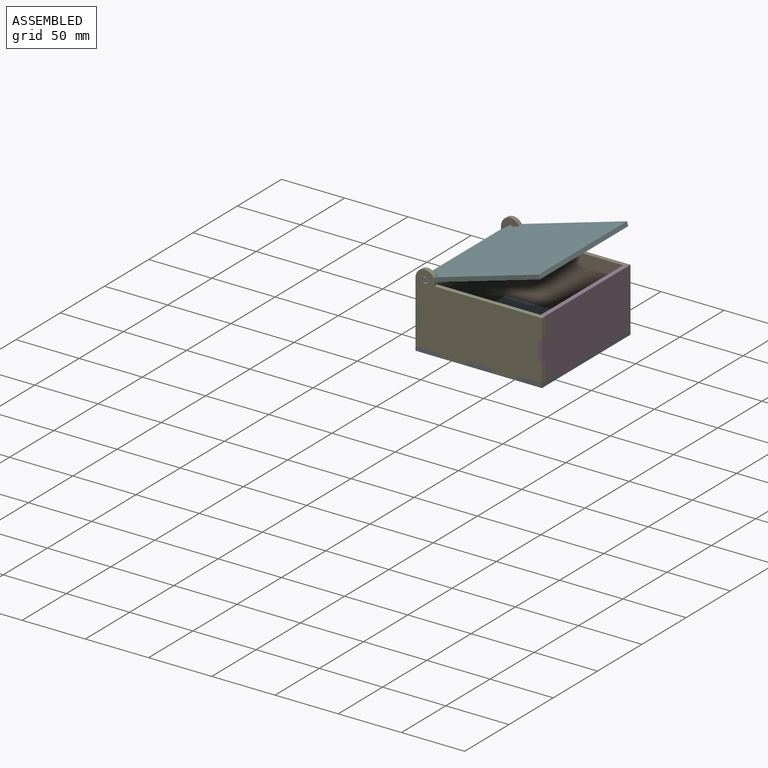
[diagram: assembled view]
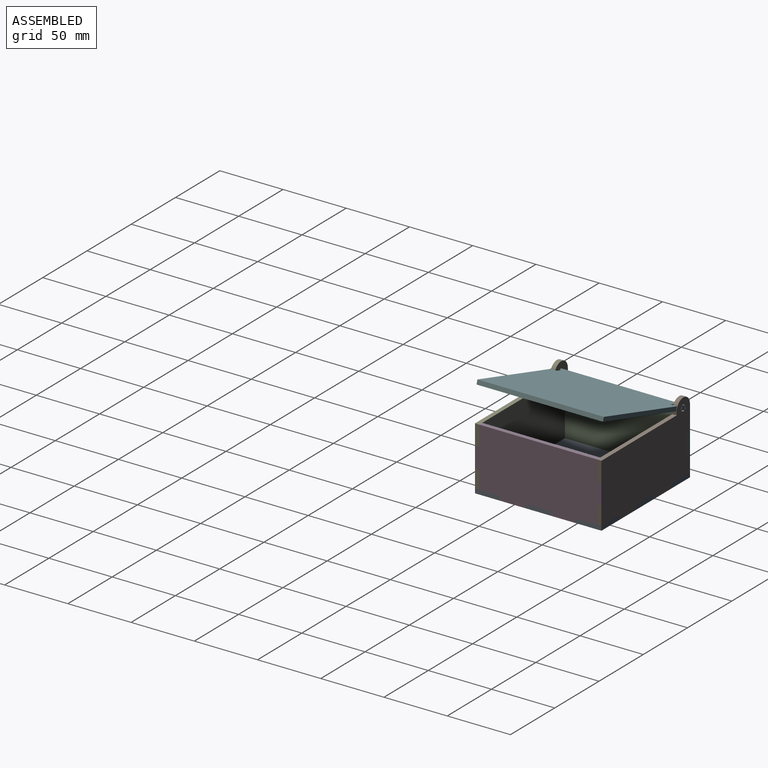
[diagram: assembled view, second angle]
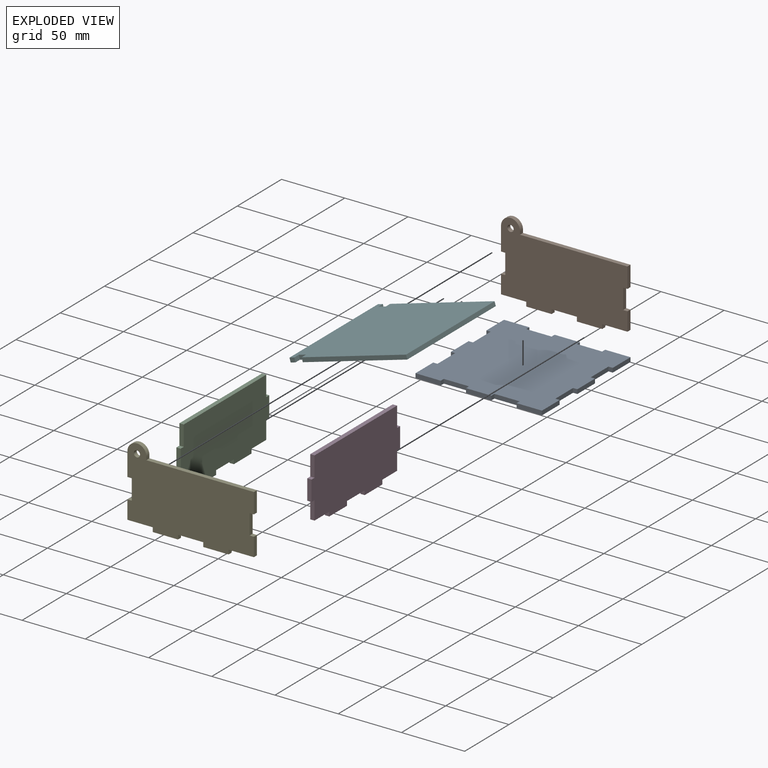
[diagram: exploded view]
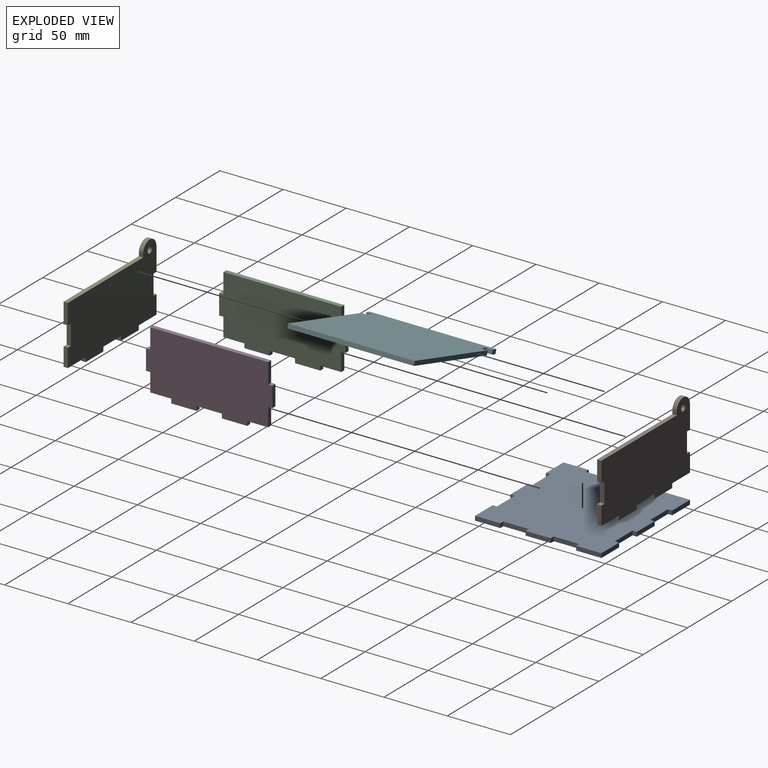
[diagram: exploded view, second angle]
ASSEMBLY  parts=6 mates=5
PART A: 38 faces, bbox 100x100x3.4 mm
  f0: plane 20x3.4mm, normal (0,-1,0), area 68mm2, adj f8,f13,f18,f23
  f1: plane 20x3.4mm, normal (0,-1,0), area 68mm2, adj f2,f8,f13,f17
  f2: plane 20x3.4mm, normal (1,0,0), area 68mm2, adj f1,f8,f13,f34
  f3: plane 20x3.4mm, normal (1,0,0), area 68mm2, adj f8,f13,f31,f33
  f4: plane 20x3.4mm, normal (0,1,0), area 68mm2, adj f8,f10,f13,f36
  f5: plane 20x3.4mm, normal (0,1,0), area 68mm2, adj f8,f13,f21,f35
  f6: plane 20x3.4mm, normal (-1,0,0), area 68mm2, adj f8,f9,f13,f28
  f7: plane 20x3.4mm, normal (-1,0,0), area 68mm2, adj f8,f13,f16,f26
  f8: plane 100x100mm, normal (0,0,-1), area 9456mm2, adj f0,f1,f2,f3,f4,f5,f6,f7
  f9: plane 20x3.4mm, normal (0,-1,0), area 68mm2, adj f6,f8,f13,f24
  f10: plane 20x3.4mm, normal (1,0,0), area 68mm2, adj f4,f8,f13,f30
  f11: plane 20x3.4mm, normal (0,1,0), area 68mm2, adj f8,f12,f13,f20
  f12: plane 20x3.4mm, normal (-1,0,0), area 68mm2, adj f8,f11,f13,f14
  f13: plane 100x100mm, normal (0,0,1), area 9456mm2, adj f0,f1,f2,f3,f4,f5,f6,f7
  f14: plane 3.4x3.4mm, normal (0,-1,0), area 11.6mm2, adj f8,f12,f13,f15
  f15: plane 20x3.4mm, normal (-1,0,0), area 68mm2, adj f8,f13,f14,f16
  f16: plane 3.4x3.4mm, normal (0,1,0), area 11.6mm2, adj f7,f8,f13,f15
  f17: plane 3.4x3.4mm, normal (-1,0,0), area 11.6mm2, adj f1,f8,f13,f19
  f18: plane 3.4x3.4mm, normal (1,0,0), area 11.6mm2, adj f0,f8,f13,f19
  f19: plane 20x3.4mm, normal (0,-1,0), area 68mm2, adj f8,f13,f17,f18
  f20: plane 3.4x3.4mm, normal (1,0,0), area 11.6mm2, adj f8,f11,f13,f22
  f21: plane 3.4x3.4mm, normal (-1,0,0), area 11.6mm2, adj f5,f8,f13,f22
  f22: plane 20x3.4mm, normal (0,1,0), area 68mm2, adj f8,f13,f20,f21
  f23: plane 3.4x3.4mm, normal (-1,0,0), area 11.6mm2, adj f0,f8,f13,f25
  f24: plane 3.4x3.4mm, normal (1,0,0), area 11.6mm2, adj f8,f9,f13,f25
  f25: plane 20x3.4mm, normal (0,-1,0), area 68mm2, adj f8,f13,f23,f24
  f26: plane 3.4x3.4mm, normal (0,-1,0), area 11.6mm2, adj f7,f8,f13,f27
  f27: plane 20x3.4mm, normal (-1,0,0), area 68mm2, adj f8,f13,f26,f28
  f28: plane 3.4x3.4mm, normal (0,1,0), area 11.6mm2, adj f6,f8,f13,f27
  f29: plane 20x3.4mm, normal (1,0,0), area 68mm2, adj f8,f13,f30,f31
  f30: plane 3.4x3.4mm, normal (0,-1,0), area 11.6mm2, adj f8,f10,f13,f29
  f31: plane 3.4x3.4mm, normal (0,1,0), area 11.6mm2, adj f3,f8,f13,f29
  f32: plane 20x3.4mm, normal (1,0,0), area 68mm2, adj f8,f13,f33,f34
  f33: plane 3.4x3.4mm, normal (0,-1,0), area 11.6mm2, adj f3,f8,f13,f32
  f34: plane 3.4x3.4mm, normal (0,1,0), area 11.6mm2, adj f2,f8,f13,f32
  f35: plane 3.4x3.4mm, normal (1,0,0), area 11.6mm2, adj f5,f8,f13,f37
  f36: plane 3.4x3.4mm, normal (-1,0,0), area 11.6mm2, adj f4,f8,f13,f37
  f37: plane 20x3.4mm, normal (0,1,0), area 68mm2, adj f8,f13,f35,f36
PART B: 25 faces, bbox 100x3.4x60 mm
  f0: plane 16x3.4mm, normal (1,0,0), area 54.4mm2, adj f2,f3,f8,f19
  f1: plane 18.5x3.4mm, normal (-1,0,0), area 62.9mm2, adj f2,f3,f10,f22
  f2: plane 100x60mm, normal (0,-1,0), area 4793.4mm2, adj f0,f1,f4,f5,f6,f7,f8,f9
  f3: plane 100x60mm, normal (0,1,0), area 4793.4mm2, adj f0,f1,f4,f5,f6,f7,f8,f9
  f4: plane 20x3.4mm, normal (0,0,-1), area 68mm2, adj f2,f3,f13,f18
  f5: plane 20x3.4mm, normal (0,0,-1), area 68mm2, adj f2,f3,f14,f16
  f6: plane 14.6x3.4mm, normal (1,0,0), area 49.6mm2, adj f2,f3,f15,f21
  f7: plane 14.6x3.4mm, normal (-1,0,0), area 49.6mm2, adj f2,f3,f17,f23
  f8: plane 85x3.4mm, normal (0,0,1), area 289mm2, adj f0,f2,f3,f9
  f9: plane 3.4x2.5mm, normal (1,0,0), area 8.5mm2, adj f2,f3,f8,f10
  f10: cylinder r=7.5mm len=15mm, axis (0,1,0), area 80.1mm2, adj f1,f2,f3,f9
  f11: cylinder r=2.5mm len=5mm, axis (0,1,0), area 53.4mm2, adj f2,f3
  f12: plane 20x3.4mm, normal (0,0,-1), area 68mm2, adj f2,f3,f13,f14
  f13: plane 3.4x3.4mm, normal (1,0,0), area 11.6mm2, adj f2,f3,f4,f12
  f14: plane 3.4x3.4mm, normal (-1,0,0), area 11.6mm2, adj f2,f3,f5,f12
  f15: plane 20x3.4mm, normal (0,0,-1), area 68mm2, adj f2,f3,f6,f16
  f16: plane 3.4x3.4mm, normal (1,0,0), area 11.6mm2, adj f2,f3,f5,f15
  f17: plane 20x3.4mm, normal (0,0,-1), area 68mm2, adj f2,f3,f7,f18
  f18: plane 3.4x3.4mm, normal (-1,0,0), area 11.6mm2, adj f2,f3,f4,f17
  f19: plane 3.4x3.4mm, normal (0,0,-1), area 11.6mm2, adj f0,f2,f3,f20
  f20: plane 16x3.4mm, normal (1,0,0), area 54.4mm2, adj f2,f3,f19,f21
  f21: plane 3.4x3.4mm, normal (0,0,1), area 11.6mm2, adj f2,f3,f6,f20
  f22: plane 3.4x3.4mm, normal (0,0,-1), area 11.6mm2, adj f1,f2,f3,f24
  f23: plane 3.4x3.4mm, normal (0,0,1), area 11.6mm2, adj f2,f3,f7,f24
  f24: plane 16x3.4mm, normal (-1,0,0), area 54.4mm2, adj f2,f3,f22,f23
PART C: 22 faces, bbox 3.4x100x50 mm
  f0: plane 16x3.4mm, normal (0,-1,0), area 54.4mm2, adj f2,f3,f14,f18
  f1: plane 16x3.4mm, normal (0,1,0), area 54.4mm2, adj f2,f3,f16,f20
  f2: plane 100x50mm, normal (1,0,0), area 4587.9mm2, adj f0,f1,f4,f5,f6,f7,f8,f9
  f3: plane 100x50mm, normal (-1,0,0), area 4587.9mm2, adj f0,f1,f4,f5,f6,f7,f8,f9
  f4: plane 93.2x3.4mm, normal (0,0,1), area 316.9mm2, adj f2,f3,f19,f21
  f5: plane 20x3.4mm, normal (0,0,-1), area 68mm2, adj f2,f3,f8,f13
  f6: plane 20x3.4mm, normal (0,0,-1), area 68mm2, adj f2,f3,f9,f11
  f7: plane 20x3.4mm, normal (0,0,-1), area 68mm2, adj f2,f3,f8,f9
  f8: plane 3.4x3.4mm, normal (0,1,0), area 11.6mm2, adj f2,f3,f5,f7
  f9: plane 3.4x3.4mm, normal (0,-1,0), area 11.6mm2, adj f2,f3,f6,f7
  f10: plane 16.6x3.4mm, normal (0,0,-1), area 56.4mm2, adj f2,f3,f11,f17
  f11: plane 3.4x3.4mm, normal (0,1,0), area 11.6mm2, adj f2,f3,f6,f10
  f12: plane 16.6x3.4mm, normal (0,0,-1), area 56.4mm2, adj f2,f3,f13,f15
  f13: plane 3.4x3.4mm, normal (0,-1,0), area 11.6mm2, adj f2,f3,f5,f12
  f14: plane 3.4x3.4mm, normal (0,0,-1), area 11.6mm2, adj f0,f2,f3,f15
  f15: plane 14.6x3.4mm, normal (0,-1,0), area 49.6mm2, adj f2,f3,f12,f14
  f16: plane 3.4x3.4mm, normal (0,0,-1), area 11.6mm2, adj f1,f2,f3,f17
  f17: plane 14.6x3.4mm, normal (0,1,0), area 49.6mm2, adj f2,f3,f10,f16
  f18: plane 3.4x3.4mm, normal (0,0,1), area 11.6mm2, adj f0,f2,f3,f19
  f19: plane 16x3.4mm, normal (0,-1,0), area 54.4mm2, adj f2,f3,f4,f18
  f20: plane 3.4x3.4mm, normal (0,0,1), area 11.6mm2, adj f1,f2,f3,f21
  f21: plane 16x3.4mm, normal (0,1,0), area 54.4mm2, adj f2,f3,f4,f20
PART D: same geometry as C
PART E: same geometry as B
PART F: 14 faces, bbox 100x96x3.4 mm
  f0: plane 86x3.4mm, normal (-1,0,0), area 292.4mm2, adj f2,f5,f7,f11
  f1: plane 86x3.4mm, normal (1,0,0), area 292.4mm2, adj f2,f5,f7,f10
  f2: plane 100x96mm, normal (0,0,-1), area 9540mm2, adj f0,f1,f3,f4,f5,f6,f8,f9
  f3: plane 100x3.4mm, normal (0,1,0), area 340mm2, adj f2,f4,f6,f7
  f4: plane 4x3.4mm, normal (-1,0,0), area 13.6mm2, adj f2,f3,f7,f13
  f5: plane 100x3.4mm, normal (0,-1,0), area 340mm2, adj f0,f1,f2,f7
  f6: plane 4x3.4mm, normal (1,0,0), area 13.6mm2, adj f2,f3,f7,f8
  f7: plane 100x96mm, normal (0,0,1), area 9540mm2, adj f0,f1,f3,f4,f5,f6,f8,f9
  f8: plane 5x3.4mm, normal (0,-1,0), area 17mm2, adj f2,f6,f7,f9
  f9: plane 6x3.4mm, normal (1,0,0), area 20.4mm2, adj f2,f7,f8,f10
  f10: plane 5x3.4mm, normal (0,1,0), area 17mm2, adj f1,f2,f7,f9
  f11: plane 5x3.4mm, normal (0,1,0), area 17mm2, adj f0,f2,f7,f12
  f12: plane 6x3.4mm, normal (-1,0,0), area 20.4mm2, adj f2,f7,f11,f13
  f13: plane 5x3.4mm, normal (0,-1,0), area 17mm2, adj f2,f4,f7,f12
PLACE A t=(-7.15,46.05,-34.35)mm fixed
PLACE B t=(-57.08,46.05,-34.35)mm
PLACE C t=(-51.24,-59.78,-34.35)mm
PLACE D t=(45.36,-59.78,-34.35)mm
PLACE E t=(-57.08,-50.55,-34.35)mm
PLACE F rot(axis=(-0.14,-0.14,0.98),91.1deg) t=(-45.19,-53.95,15.96)mm
MATE fastened A.f14 <-> C.f11  axis (0,-1,0) through (-49.54,26.05,-32.65)mm
MATE fastened B.f3 <-> A.f4  axis (0,1,0) through (28.76,46.05,-30.95)mm
MATE revolute F.f6 <-> B.f10  axis (0,1,0) through (-43.74,46.05,18.15)mm
MATE fastened E.f2 <-> A.f9  axis (0,-1,0) through (-31.24,-53.95,-30.95)mm
MATE fastened A.f34 <-> D.f13  axis (0,1,0) through (47.06,-33.95,-32.65)mm
